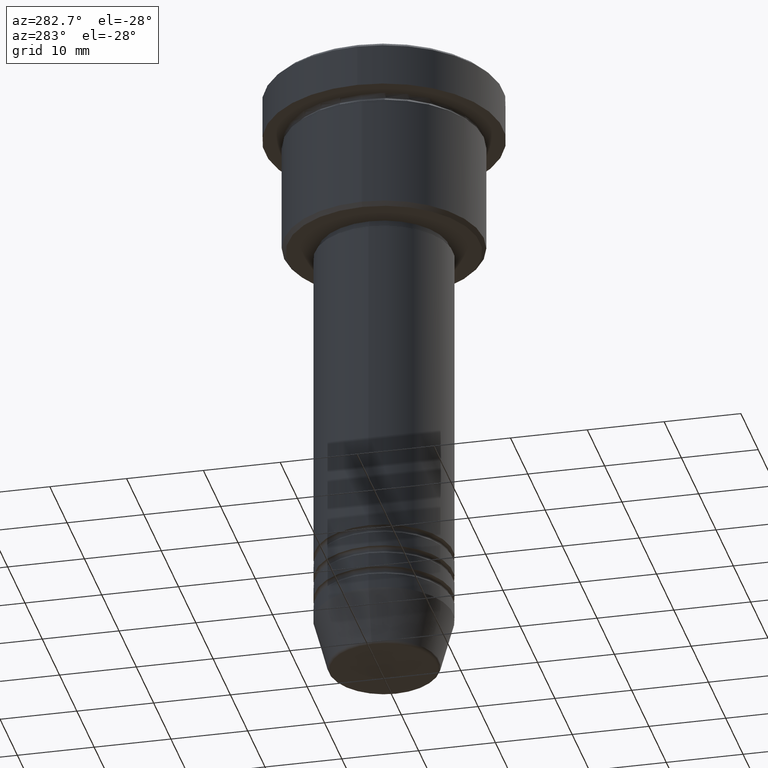
[diagram: clean part render]
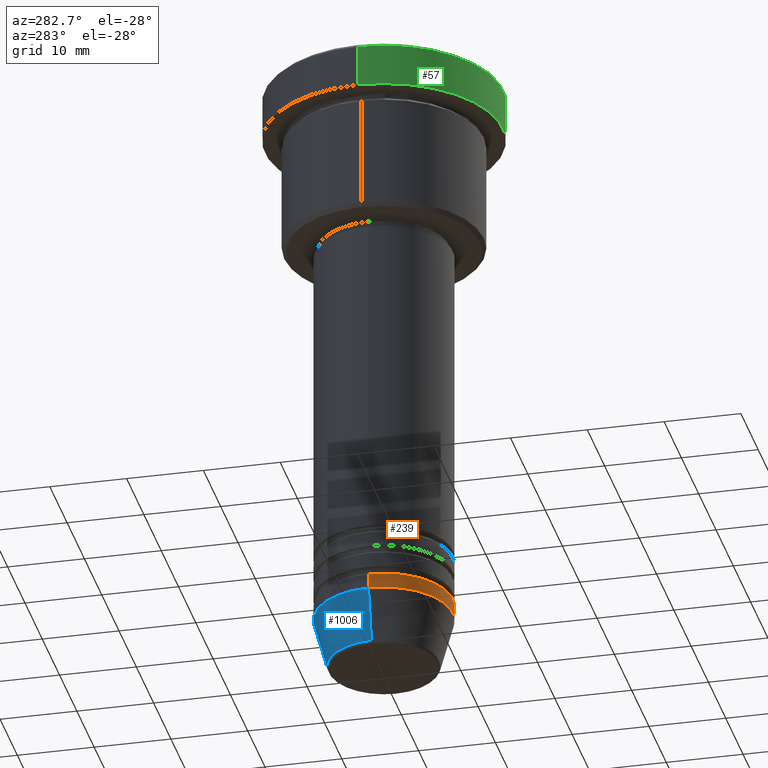
[diagram: same view with three faces highlighted in distinct colors, each labeled with its STEP entity id]
A machine part, auxiliary view with three faces highlighted in distinct colors.
Their STEP definitions:

[orange] entity #239 — the highlighted cylindrical surface (partial cylindrical patch) has radius 9 mm, axis along (-0, -0, 1).
#56 = DIRECTION ( 'NONE',  ( -0.000000000000000000, -0.000000000000000000, 1.000000000000000000 ) ) ;
#59 = CYLINDRICAL_SURFACE ( 'NONE', #172, 9.000000000000000000 ) ;
#154 = ORIENTED_EDGE ( 'NONE', *, *, #727, .T. ) ;
#172 = AXIS2_PLACEMENT_3D ( 'NONE', #795, #1148, #978 ) ;
#183 = VERTEX_POINT ( 'NONE', #953 ) ;
#218 = EDGE_CURVE ( 'NONE', #402, #659, #964, .T. ) ;
#239 = ADVANCED_FACE ( 'NONE', ( #905 ), #59, .T. ) ;
#254 = DIRECTION ( 'NONE',  ( -0.000000000000000000, -0.000000000000000000, 1.000000000000000000 ) ) ;
#257 = DIRECTION ( 'NONE',  ( 1.000000000000000000, 0.000000000000000000, 0.000000000000000000 ) ) ;
#260 = ORIENTED_EDGE ( 'NONE', *, *, #644, .F. ) ;
#319 = LINE ( 'NONE', #1060, #463 ) ;
#385 = VERTEX_POINT ( 'NONE', #1076 ) ;
#402 = VERTEX_POINT ( 'NONE', #642 ) ;
#417 = CARTESIAN_POINT ( 'NONE',  ( 0.000000000000000000, 0.000000000000000000, -72.99999999999998579 ) ) ;
#418 = VECTOR ( 'NONE', #766, 1000.000000000000000 ) ;
#440 = CIRCLE ( 'NONE', #1160, 9.000000000000000000 ) ;
#463 = VECTOR ( 'NONE', #254, 1000.000000000000000 ) ;
#505 = ORIENTED_EDGE ( 'NONE', *, *, #1166, .T. ) ;
#575 = CARTESIAN_POINT ( 'NONE',  ( -9.000000000000000000, 1.102182119232617714E-15, 0.000000000000000000 ) ) ;
#642 = CARTESIAN_POINT ( 'NONE',  ( -9.000000000000000000, 1.102182119232617714E-15, -74.99999999999998579 ) ) ;
#644 = EDGE_CURVE ( 'NONE', #659, #183, #440, .T. ) ;
#659 = VERTEX_POINT ( 'NONE', #1145 ) ;
#691 = EDGE_LOOP ( 'NONE', ( #1013, #154, #505, #260 ) ) ;
#694 = DIRECTION ( 'NONE',  ( 1.000000000000000000, 0.000000000000000000, 0.000000000000000000 ) ) ;
#727 = EDGE_CURVE ( 'NONE', #402, #385, #860, .T. ) ;
#728 = AXIS2_PLACEMENT_3D ( 'NONE', #896, #56, #694 ) ;
#766 = DIRECTION ( 'NONE',  ( -0.000000000000000000, -0.000000000000000000, 1.000000000000000000 ) ) ;
#795 = CARTESIAN_POINT ( 'NONE',  ( 0.000000000000000000, 0.000000000000000000, 0.000000000000000000 ) ) ;
#860 = CIRCLE ( 'NONE', #728, 9.000000000000000000 ) ;
#896 = CARTESIAN_POINT ( 'NONE',  ( 0.000000000000000000, 0.000000000000000000, -74.99999999999998579 ) ) ;
#905 = FACE_OUTER_BOUND ( 'NONE', #691, .T. ) ;
#953 = CARTESIAN_POINT ( 'NONE',  ( 9.000000000000000000, 0.000000000000000000, -72.99999999999998579 ) ) ;
#964 = LINE ( 'NONE', #575, #418 ) ;
#978 = DIRECTION ( 'NONE',  ( 1.000000000000000000, 0.000000000000000000, 0.000000000000000000 ) ) ;
#1013 = ORIENTED_EDGE ( 'NONE', *, *, #218, .F. ) ;
#1060 = CARTESIAN_POINT ( 'NONE',  ( 9.000000000000000000, 0.000000000000000000, 0.000000000000000000 ) ) ;
#1076 = CARTESIAN_POINT ( 'NONE',  ( 9.000000000000000000, 0.000000000000000000, -74.99999999999998579 ) ) ;
#1127 = DIRECTION ( 'NONE',  ( -0.000000000000000000, -0.000000000000000000, 1.000000000000000000 ) ) ;
#1145 = CARTESIAN_POINT ( 'NONE',  ( -9.000000000000000000, 1.102182119232617714E-15, -72.99999999999998579 ) ) ;
#1148 = DIRECTION ( 'NONE',  ( -0.000000000000000000, -0.000000000000000000, 1.000000000000000000 ) ) ;
#1160 = AXIS2_PLACEMENT_3D ( 'NONE', #417, #1127, #257 ) ;
#1166 = EDGE_CURVE ( 'NONE', #385, #183, #319, .T. ) ;

[blue] entity #1006 — the highlighted conical surface has half-angle 15 deg.
#6 = VERTEX_POINT ( 'NONE', #124 ) ;
#14 = CARTESIAN_POINT ( 'NONE',  ( 9.000000000000000000, 0.000000000000000000, -74.99999999999998579 ) ) ;
#21 = DIRECTION ( 'NONE',  ( 1.000000000000000000, 0.000000000000000000, 0.000000000000000000 ) ) ;
#28 = CARTESIAN_POINT ( 'NONE',  ( 7.223655072137188604, 0.000000000000000000, -81.62940952255125637 ) ) ;
#32 = CARTESIAN_POINT ( 'NONE',  ( 0.000000000000000000, 0.000000000000000000, -74.99999999999998579 ) ) ;
#50 = ORIENTED_EDGE ( 'NONE', *, *, #297, .F. ) ;
#65 = CARTESIAN_POINT ( 'NONE',  ( 0.000000000000000000, 0.000000000000000000, -81.62940952255125637 ) ) ;
#68 = EDGE_LOOP ( 'NONE', ( #327, #202, #1077, #50 ) ) ;
#124 = CARTESIAN_POINT ( 'NONE',  ( -7.223655072137189492, 9.934123627281765110E-16, -81.62940952255125637 ) ) ;
#133 = CONICAL_SURFACE ( 'NONE', #289, 9.000000000000000000, 0.2617993877991500740 ) ;
#148 = EDGE_CURVE ( 'NONE', #385, #402, #647, .T. ) ;
#177 = VERTEX_POINT ( 'NONE', #28 ) ;
#202 = ORIENTED_EDGE ( 'NONE', *, *, #608, .T. ) ;
#251 = CIRCLE ( 'NONE', #972, 7.223655072137188604 ) ;
#289 = AXIS2_PLACEMENT_3D ( 'NONE', #32, #851, #658 ) ;
#297 = EDGE_CURVE ( 'NONE', #177, #385, #429, .T. ) ;
#322 = AXIS2_PLACEMENT_3D ( 'NONE', #928, #1141, #21 ) ;
#327 = ORIENTED_EDGE ( 'NONE', *, *, #434, .T. ) ;
#356 = DIRECTION ( 'NONE',  ( -0.2588190451025213501, 3.169619151431772337E-17, 0.9659258262890680902 ) ) ;
#385 = VERTEX_POINT ( 'NONE', #1076 ) ;
#394 = VECTOR ( 'NONE', #356, 1000.000000000000000 ) ;
#402 = VERTEX_POINT ( 'NONE', #642 ) ;
#429 = LINE ( 'NONE', #14, #725 ) ;
#434 = EDGE_CURVE ( 'NONE', #177, #6, #251, .T. ) ;
#491 = FACE_OUTER_BOUND ( 'NONE', #68, .T. ) ;
#530 = CARTESIAN_POINT ( 'NONE',  ( -9.000000000000000000, 1.102182119232617714E-15, -74.99999999999998579 ) ) ;
#608 = EDGE_CURVE ( 'NONE', #6, #402, #1067, .T. ) ;
#642 = CARTESIAN_POINT ( 'NONE',  ( -9.000000000000000000, 1.102182119232617714E-15, -74.99999999999998579 ) ) ;
#647 = CIRCLE ( 'NONE', #322, 9.000000000000000000 ) ;
#658 = DIRECTION ( 'NONE',  ( 1.000000000000000000, 0.000000000000000000, 0.000000000000000000 ) ) ;
#725 = VECTOR ( 'NONE', #1019, 1000.000000000000000 ) ;
#788 = DIRECTION ( 'NONE',  ( 1.000000000000000000, 0.000000000000000000, 0.000000000000000000 ) ) ;
#851 = DIRECTION ( 'NONE',  ( -0.000000000000000000, -0.000000000000000000, 1.000000000000000000 ) ) ;
#928 = CARTESIAN_POINT ( 'NONE',  ( 0.000000000000000000, 0.000000000000000000, -74.99999999999998579 ) ) ;
#972 = AXIS2_PLACEMENT_3D ( 'NONE', #65, #1129, #788 ) ;
#1006 = ADVANCED_FACE ( 'NONE', ( #491 ), #133, .T. ) ;
#1019 = DIRECTION ( 'NONE',  ( 0.2588190451025213501, 0.000000000000000000, 0.9659258262890680902 ) ) ;
#1067 = LINE ( 'NONE', #530, #394 ) ;
#1076 = CARTESIAN_POINT ( 'NONE',  ( 9.000000000000000000, 0.000000000000000000, -74.99999999999998579 ) ) ;
#1077 = ORIENTED_EDGE ( 'NONE', *, *, #148, .F. ) ;
#1129 = DIRECTION ( 'NONE',  ( -0.000000000000000000, -0.000000000000000000, 1.000000000000000000 ) ) ;
#1141 = DIRECTION ( 'NONE',  ( -0.000000000000000000, -0.000000000000000000, 1.000000000000000000 ) ) ;

[green] entity #57 — the highlighted cylindrical surface (partial cylindrical patch) has radius 15.5 mm, axis along (-0, -0, 1).
#8 = CIRCLE ( 'NONE', #442, 15.50000000000000000 ) ;
#57 = ADVANCED_FACE ( 'NONE', ( #1053 ), #408, .T. ) ;
#147 = DIRECTION ( 'NONE',  ( -0.000000000000000000, -0.000000000000000000, 1.000000000000000000 ) ) ;
#179 = VECTOR ( 'NONE', #649, 1000.000000000000000 ) ;
#206 = CARTESIAN_POINT ( 'NONE',  ( 0.000000000000000000, 0.000000000000000000, -5.999999999999995559 ) ) ;
#234 = DIRECTION ( 'NONE',  ( 1.000000000000000000, 0.000000000000000000, 0.000000000000000000 ) ) ;
#237 = ORIENTED_EDGE ( 'NONE', *, *, #1062, .F. ) ;
#244 = CARTESIAN_POINT ( 'NONE',  ( 0.000000000000000000, 0.000000000000000000, 0.000000000000000000 ) ) ;
#284 = CARTESIAN_POINT ( 'NONE',  ( 15.50000000000000000, 0.000000000000000000, 0.000000000000000000 ) ) ;
#408 = CYLINDRICAL_SURFACE ( 'NONE', #900, 15.50000000000000000 ) ;
#424 = ORIENTED_EDGE ( 'NONE', *, *, #688, .T. ) ;
#433 = CARTESIAN_POINT ( 'NONE',  ( 0.000000000000000000, 0.000000000000000000, -0.4999999999999987232 ) ) ;
#442 = AXIS2_PLACEMENT_3D ( 'NONE', #433, #800, #610 ) ;
#478 = CIRCLE ( 'NONE', #937, 15.50000000000000000 ) ;
#500 = CARTESIAN_POINT ( 'NONE',  ( -15.50000000000000000, 1.898202538678397557E-15, 0.000000000000000000 ) ) ;
#552 = VERTEX_POINT ( 'NONE', #735 ) ;
#610 = DIRECTION ( 'NONE',  ( 1.000000000000000000, 0.000000000000000000, 0.000000000000000000 ) ) ;
#649 = DIRECTION ( 'NONE',  ( -0.000000000000000000, -0.000000000000000000, 1.000000000000000000 ) ) ;
#650 = EDGE_LOOP ( 'NONE', ( #237, #1018, #836, #424 ) ) ;
#666 = CARTESIAN_POINT ( 'NONE',  ( -15.50000000000000000, 1.898202538678397557E-15, -0.4999999999999987232 ) ) ;
#688 = EDGE_CURVE ( 'NONE', #762, #996, #8, .T. ) ;
#735 = CARTESIAN_POINT ( 'NONE',  ( -15.50000000000000000, 1.898202538678397557E-15, -5.999999999999995559 ) ) ;
#762 = VERTEX_POINT ( 'NONE', #820 ) ;
#800 = DIRECTION ( 'NONE',  ( 0.000000000000000000, 0.000000000000000000, -1.000000000000000000 ) ) ;
#820 = CARTESIAN_POINT ( 'NONE',  ( 15.50000000000000000, 0.000000000000000000, -0.4999999999999987232 ) ) ;
#836 = ORIENTED_EDGE ( 'NONE', *, *, #1023, .T. ) ;
#839 = DIRECTION ( 'NONE',  ( 1.000000000000000000, 0.000000000000000000, 0.000000000000000000 ) ) ;
#900 = AXIS2_PLACEMENT_3D ( 'NONE', #244, #1123, #234 ) ;
#927 = EDGE_CURVE ( 'NONE', #552, #1094, #478, .T. ) ;
#937 = AXIS2_PLACEMENT_3D ( 'NONE', #206, #1106, #839 ) ;
#980 = LINE ( 'NONE', #500, #1137 ) ;
#996 = VERTEX_POINT ( 'NONE', #666 ) ;
#1018 = ORIENTED_EDGE ( 'NONE', *, *, #927, .T. ) ;
#1023 = EDGE_CURVE ( 'NONE', #1094, #762, #1092, .T. ) ;
#1053 = FACE_OUTER_BOUND ( 'NONE', #650, .T. ) ;
#1062 = EDGE_CURVE ( 'NONE', #552, #996, #980, .T. ) ;
#1092 = LINE ( 'NONE', #284, #179 ) ;
#1094 = VERTEX_POINT ( 'NONE', #1119 ) ;
#1106 = DIRECTION ( 'NONE',  ( -0.000000000000000000, -0.000000000000000000, 1.000000000000000000 ) ) ;
#1119 = CARTESIAN_POINT ( 'NONE',  ( 15.50000000000000000, 0.000000000000000000, -5.999999999999995559 ) ) ;
#1123 = DIRECTION ( 'NONE',  ( -0.000000000000000000, -0.000000000000000000, 1.000000000000000000 ) ) ;
#1137 = VECTOR ( 'NONE', #147, 1000.000000000000000 ) ;